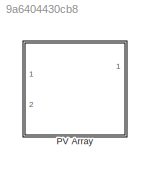
MODEL slx_9a6404430cb8
KIND model
CONFIG AbsTol = auto
CONFIG EnableMultiTasking = on
CONFIG FixedStep = auto
CONFIG MaxStep = auto
CONFIG MinStep = auto
CONFIG RelTol = 1e-3
CONFIG SampleTimeConstraint = Unconstrained
CONFIG Solver = ode45
CONFIG SolverName = ode45
CONFIG StartTime = 0.0
CONFIG StopTime = 2
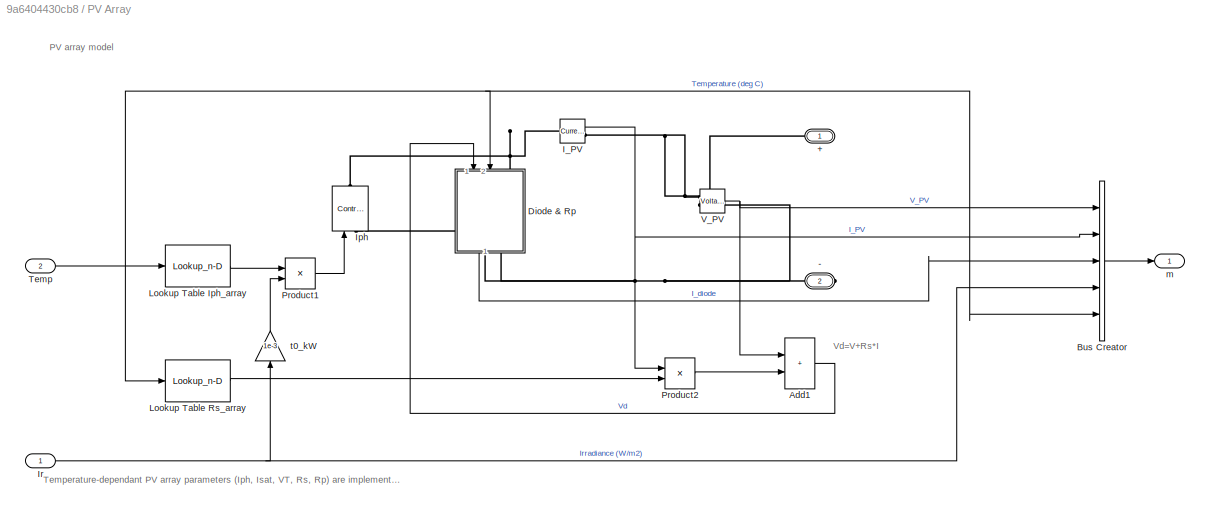
BLOCK [SubSystem] PV Array
  Ports = [2, 1, 0, 0, 0, 0, 2]
BLOCK [PMIOPort] PV Array/+
  Side = Right
BLOCK [PMIOPort] PV Array/-
  Port = 2
  Side = Right
BLOCK [Sum] PV Array/Add1
  IconShape = rectangular
  Ports = [2, 1]
BLOCK [BusCreator] PV Array/Bus Creator
  DisplayOption = bar
  InheritFromInputs = on
  Inputs = 5
  Ports = [5, 1]
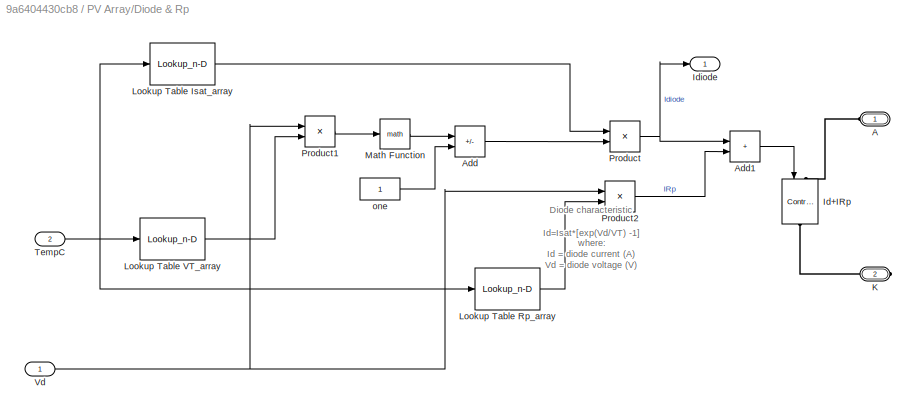
BLOCK [SubSystem] PV Array/Diode & Rp
  Ports = [2, 1, 0, 0, 0, 1, 1]
BLOCK [PMIOPort] PV Array/Diode & Rp/A
  Side = Left
BLOCK [Sum] PV Array/Diode & Rp/Add
  IconShape = rectangular
  Inputs = +-
  Ports = [2, 1]
BLOCK [Sum] PV Array/Diode & Rp/Add1
  IconShape = rectangular
  Ports = [2, 1]
BLOCK [Reference] PV Array/Diode & Rp/Id+IRp  REF=spsControlledCurrentSourceLib/Controlled Current Source
  Ports = [1, 0, 0, 0, 0, 1, 1]
  SourceBlock = spsControlledCurrentSourceLib/Controlled Current Source
  SourceType = Controlled Current Source
BLOCK [Outport] PV Array/Diode & Rp/Idiode
BLOCK [PMIOPort] PV Array/Diode & Rp/K
  Port = 2
  Side = Right
BLOCK [Lookup_n-D] PV Array/Diode & Rp/Lookup Table Isat_array
  BreakpointsForDimension1 = TempC
  NumberOfTableDimensions = 1
  Ports = [1, 1]
  RndMeth = Simplest
  Table = Isat_array
BLOCK [Lookup_n-D] PV Array/Diode & Rp/Lookup Table Rp_array
  BreakpointsForDimension1 = TempC
  NumberOfTableDimensions = 1
  Ports = [1, 1]
  RndMeth = Simplest
  Table = Rp_array
BLOCK [Lookup_n-D] PV Array/Diode & Rp/Lookup Table VT_array
  BreakpointsForDimension1 = TempC
  NumberOfTableDimensions = 1
  Ports = [1, 1]
  RndMeth = Simplest
  Table = VT_array
BLOCK [Math] PV Array/Diode & Rp/Math Function
  Ports = [1, 1]
BLOCK [Product] PV Array/Diode & Rp/Product
  Ports = [2, 1]
  RndMeth = Zero
BLOCK [Product] PV Array/Diode & Rp/Product1
  Inputs = */
  Ports = [2, 1]
  RndMeth = Zero
BLOCK [Product] PV Array/Diode & Rp/Product2
  Inputs = */
  Ports = [2, 1]
  RndMeth = Zero
BLOCK [Inport] PV Array/Diode & Rp/TempC
  Port = 2
BLOCK [Inport] PV Array/Diode & Rp/Vd
BLOCK [Constant] PV Array/Diode & Rp/one
BLOCK [Reference] PV Array/I_PV  REF=spsCurrentMeasurementLib/Current Measurement
  Ports = [0, 1, 0, 0, 0, 1, 1]
  SourceBlock = spsCurrentMeasurementLib/Current Measurement
  SourceType = Current Measurement
BLOCK [Reference] PV Array/Iph  REF=spsControlledCurrentSourceLib/Controlled Current Source
  Ports = [1, 0, 0, 0, 0, 1, 1]
  SourceBlock = spsControlledCurrentSourceLib/Controlled Current Source
  SourceType = Controlled Current Source
BLOCK [Inport] PV Array/Ir
BLOCK [Lookup_n-D] PV Array/Lookup Table Iph_array
  BreakpointsForDimension1 = TempC
  NumberOfTableDimensions = 1
  Ports = [1, 1]
  RndMeth = Simplest
  Table = Iph_array
BLOCK [Lookup_n-D] PV Array/Lookup Table Rs_array
  BreakpointsForDimension1 = TempC
  NumberOfTableDimensions = 1
  Ports = [1, 1]
  RndMeth = Simplest
  Table = Rs_array
BLOCK [Product] PV Array/Product1
  Inputs = **
  Ports = [2, 1]
  RndMeth = Zero
BLOCK [Product] PV Array/Product2
  Inputs = **
  Ports = [2, 1]
  RndMeth = Zero
BLOCK [Inport] PV Array/Temp
  Port = 2
BLOCK [Reference] PV Array/V_PV  REF=spsVoltageMeasurementLib/Voltage Measurement
  Ports = [0, 1, 0, 0, 0, 2]
  SourceBlock = spsVoltageMeasurementLib/Voltage Measurement
  SourceType = Voltage Measurement
BLOCK [Outport] PV Array/m
BLOCK [Gain] PV Array/t0_kW
  Gain = 1e-3
ANNOTATION PV Array: PV array model
ANNOTATION PV Array: Temperature-dependant PV array parameters (Iph, Isat, VT, Rs, Rp) are implemented in Look-up tables.
ANNOTATION PV Array: Vd=V+Rs*I
ANNOTATION PV Array/Diode & Rp: Diode characteristic Id=Isat*[exp(Vd/VT) -1] where: Id = diode current (A) Vd = diode voltage (V) Isat = diode saturation current (A) VT = temperature voltage = k*T/q*Qd*Ncell*Nser T = cell temperature (K), k = Boltzman constant = 1.3806e-23 J.K^-1 q = electron charge = 1.6022e-19 C Qd = diode quality factor Ncell= number of series-connected cells per module Nser = number of series-connected modul...<+13ch>
LINE PV Array/Add1:1 -> PV Array/Diode & Rp:1
LINE PV Array/Bus Creator:1 -> PV Array/m:1
LINE PV Array/Diode & Rp/Add1:1 -> PV Array/Diode & Rp/Id+IRp:1
LINE PV Array/Diode & Rp/Add:1 -> PV Array/Diode & Rp/Product:2
LINE PV Array/Diode & Rp/Lookup Table Isat_array:1 -> PV Array/Diode & Rp/Product:1
LINE PV Array/Diode & Rp/Lookup Table Rp_array:1 -> PV Array/Diode & Rp/Product2:2
LINE PV Array/Diode & Rp/Lookup Table VT_array:1 -> PV Array/Diode & Rp/Product1:2
LINE PV Array/Diode & Rp/Math Function:1 -> PV Array/Diode & Rp/Add:1
LINE PV Array/Diode & Rp/Product1:1 -> PV Array/Diode & Rp/Math Function:1
LINE PV Array/Diode & Rp/Product2:1 -> PV Array/Diode & Rp/Add1:2
NET PV Array/Diode & Rp/Product:1 -> PV Array/Diode & Rp/Add1:1, PV Array/Diode & Rp/Idiode:1
NET PV Array/Diode & Rp/TempC:1 -> PV Array/Diode & Rp/Lookup Table Isat_array:1, PV Array/Diode & Rp/Lookup Table Rp_array:1, PV Array/Diode & Rp/Lookup Table VT_array:1
NET PV Array/Diode & Rp/Vd:1 -> PV Array/Diode & Rp/Product1:1, PV Array/Diode & Rp/Product2:1
LINE PV Array/Diode & Rp/one:1 -> PV Array/Diode & Rp/Add:2
LINE PV Array/Diode & Rp:1 -> PV Array/Bus Creator:3
NET PV Array/I_PV:1 -> PV Array/Bus Creator:2, PV Array/Product2:1
NET PV Array/Ir:1 -> PV Array/Bus Creator:4, PV Array/t0_kW:1
LINE PV Array/Lookup Table Iph_array:1 -> PV Array/Product1:1
LINE PV Array/Lookup Table Rs_array:1 -> PV Array/Product2:2
LINE PV Array/Product1:1 -> PV Array/Iph:1
LINE PV Array/Product2:1 -> PV Array/Add1:2
NET PV Array/Temp:1 -> PV Array/Bus Creator:5, PV Array/Diode & Rp:2, PV Array/Lookup Table Iph_array:1, PV Array/Lookup Table Rs_array:1
NET PV Array/V_PV:1 -> PV Array/Add1:1, PV Array/Bus Creator:1
LINE PV Array/t0_kW:1 -> PV Array/Product1:2
PNET net1: PV Array/+:RConn1 -- PV Array/I_PV:RConn1 -- PV Array/V_PV:LConn1
PNET net2: PV Array/-:RConn1 -- PV Array/Diode & Rp:RConn1 -- PV Array/Iph:LConn1 -- PV Array/V_PV:LConn2
PLINE PV Array/Diode & Rp/A:RConn1 -- PV Array/Diode & Rp/Id+IRp:LConn1
PLINE PV Array/Diode & Rp/Id+IRp:RConn1 -- PV Array/Diode & Rp/K:RConn1
PNET net3: PV Array/Diode & Rp:LConn1 -- PV Array/I_PV:LConn1 -- PV Array/Iph:RConn1
note: NET lines group one-source signal fan-out (src -> all destinations, sorted); 1:1 wires keep LINE; PNET lines group multi-terminal physical nets as a canonical sorted terminal list (undirected conserving connections); 2-terminal nets keep the pairwise PLINE form
